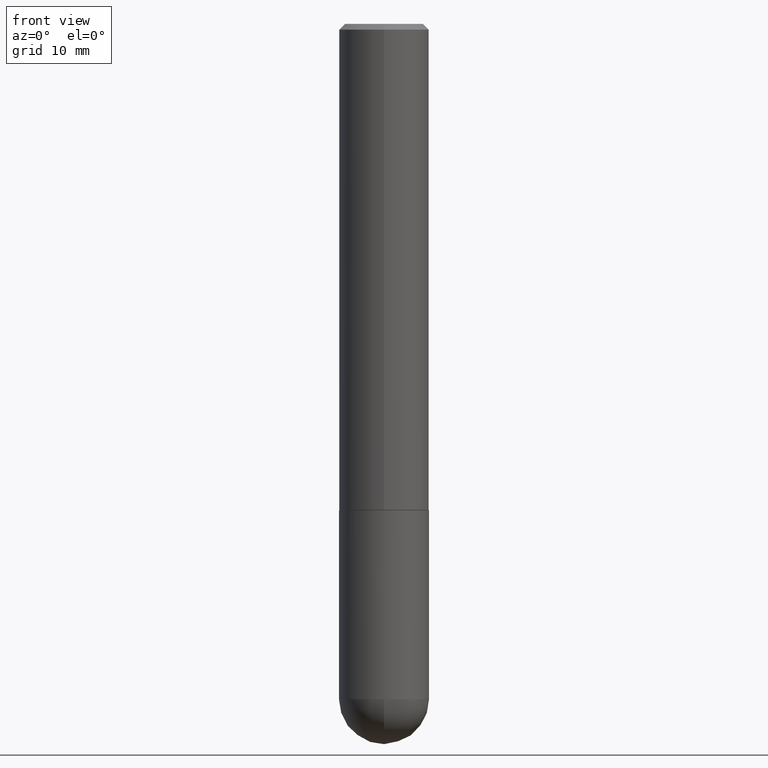
[diagram: clean part render]
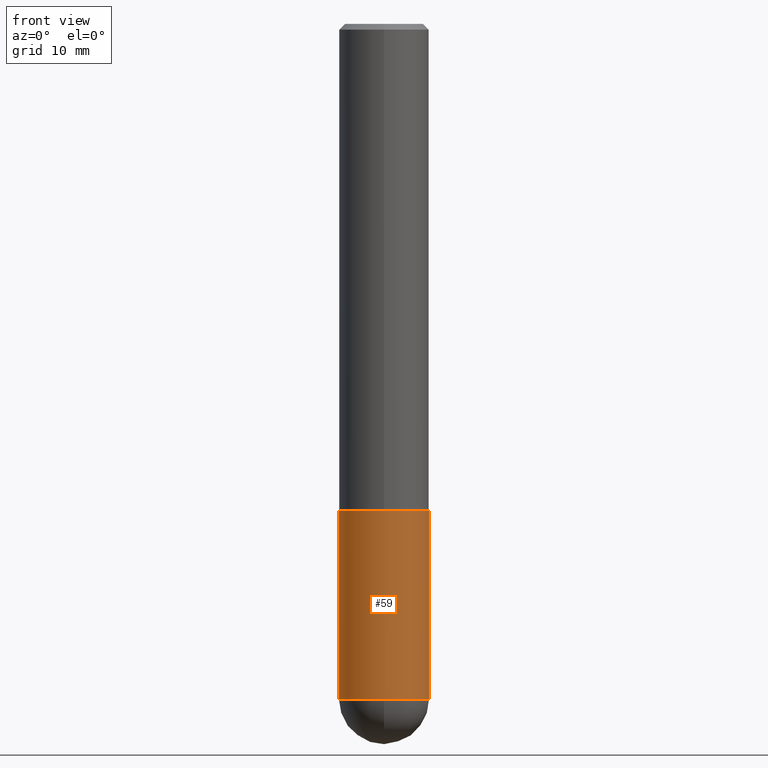
[diagram: same view with one face highlighted and labeled with its STEP entity id]
A machine part, front view. The second image highlights one B-rep face of the part: STEP entity #59.
In plain terms, the highlighted cylindrical surface (partial cylindrical patch) has radius 3.9688 mm, axis along (-0, 0, 1).
Its self-contained STEP definition (entity closure, byte-faithful):
#7 = ORIENTED_EDGE ( 'NONE', *, *, #114, .F. ) ;
#10 = DIRECTION ( 'NONE',  ( -2.445468806185136597E-29, 3.491481338843145583E-15, 1.000000000000000000 ) ) ;
#11 = DIRECTION ( 'NONE',  ( -2.445468806185136597E-29, 3.491481338843145583E-15, 1.000000000000000000 ) ) ;
#12 = DIRECTION ( 'NONE',  ( -2.445468806185136597E-29, 3.491481338843145583E-15, 1.000000000000000000 ) ) ;
#39 = DIRECTION ( 'NONE',  ( 1.000000000000000000, -6.982962677686262766E-15, 0.000000000000000000 ) ) ;
#51 = DIRECTION ( 'NONE',  ( -2.445468806185136597E-29, 3.491481338843145583E-15, 1.000000000000000000 ) ) ;
#59 = ADVANCED_FACE ( 'NONE', ( #180 ), #135, .T. ) ;
#70 = AXIS2_PLACEMENT_3D ( 'NONE', #369, #51, #233 ) ;
#72 = CARTESIAN_POINT ( 'NONE',  ( -0.1562500000000000000, -5.928166919315270321E-15, -2.343750000000000000 ) ) ;
#74 = CARTESIAN_POINT ( 'NONE',  ( -0.1562500000000000000, 1.110223024625156540E-15, -7.685836078523291160E-30 ) ) ;
#92 = VECTOR ( 'NONE', #401, 39.37007874015748143 ) ;
#99 = CIRCLE ( 'NONE', #404, 0.1562500000000000000 ) ;
#114 = EDGE_CURVE ( 'NONE', #281, #270, #396, .T. ) ;
#117 = EDGE_CURVE ( 'NONE', #270, #132, #241, .T. ) ;
#132 = VERTEX_POINT ( 'NONE', #152 ) ;
#135 = CYLINDRICAL_SURFACE ( 'NONE', #70, 0.1562500000000000000 ) ;
#152 = CARTESIAN_POINT ( 'NONE',  ( 0.1562500000000000000, -6.984708418355709513E-15, -1.688000000000000167 ) ) ;
#156 = CARTESIAN_POINT ( 'NONE',  ( -1.110223024625101517E-15, -0.1562500000000085487, -2.343749999999999556 ) ) ;
#174 = ORIENTED_EDGE ( 'NONE', *, *, #250, .T. ) ;
#180 = FACE_OUTER_BOUND ( 'NONE', #286, .T. ) ;
#205 = VECTOR ( 'NONE', #374, 39.37007874015748143 ) ;
#211 = EDGE_CURVE ( 'NONE', #385, #132, #275, .T. ) ;
#223 = VERTEX_POINT ( 'NONE', #156 ) ;
#230 = CARTESIAN_POINT ( 'NONE',  ( -0.1562500000000000000, -5.928166919315269532E-15, -1.688000000000000167 ) ) ;
#233 = DIRECTION ( 'NONE',  ( 1.000000000000000000, -6.982962677686266711E-15, 4.876176775795936353E-29 ) ) ;
#241 = CIRCLE ( 'NONE', #376, 0.1562500000000000000 ) ;
#248 = CARTESIAN_POINT ( 'NONE',  ( 0.1562500000000000000, -8.129477862328905246E-15, -2.343750000000000000 ) ) ;
#250 = EDGE_CURVE ( 'NONE', #223, #385, #99, .T. ) ;
#257 = ORIENTED_EDGE ( 'NONE', *, *, #117, .F. ) ;
#270 = VERTEX_POINT ( 'NONE', #230 ) ;
#272 = DIRECTION ( 'NONE',  ( 1.000000000000000000, -6.982962677686269077E-15, 0.000000000000000000 ) ) ;
#275 = LINE ( 'NONE', #406, #205 ) ;
#281 = VERTEX_POINT ( 'NONE', #72 ) ;
#283 = ORIENTED_EDGE ( 'NONE', *, *, #211, .T. ) ;
#286 = EDGE_LOOP ( 'NONE', ( #7, #296, #174, #283, #257 ) ) ;
#296 = ORIENTED_EDGE ( 'NONE', *, *, #337, .T. ) ;
#298 = CARTESIAN_POINT ( 'NONE',  ( 5.731567514496413899E-29, -8.183159387913622595E-15, -2.343750000000000000 ) ) ;
#329 = CARTESIAN_POINT ( 'NONE',  ( 5.731567514496413899E-29, -8.183159387913622595E-15, -2.343750000000000000 ) ) ;
#337 = EDGE_CURVE ( 'NONE', #281, #223, #372, .T. ) ;
#338 = CARTESIAN_POINT ( 'NONE',  ( 4.127951344840510809E-29, -5.893620499967230340E-15, -1.688000000000000167 ) ) ;
#369 = CARTESIAN_POINT ( 'NONE',  ( 0.000000000000000000, 0.000000000000000000, 0.000000000000000000 ) ) ;
#372 = CIRCLE ( 'NONE', #384, 0.1562500000000000000 ) ;
#374 = DIRECTION ( 'NONE',  ( -2.445468806185136877E-29, 3.491481338843145188E-15, 1.000000000000000000 ) ) ;
#376 = AXIS2_PLACEMENT_3D ( 'NONE', #338, #10, #272 ) ;
#384 = AXIS2_PLACEMENT_3D ( 'NONE', #298, #12, #39 ) ;
#385 = VERTEX_POINT ( 'NONE', #248 ) ;
#390 = DIRECTION ( 'NONE',  ( 1.000000000000000000, -6.982962677686262766E-15, 0.000000000000000000 ) ) ;
#396 = LINE ( 'NONE', #74, #92 ) ;
#401 = DIRECTION ( 'NONE',  ( -2.445468806185136877E-29, 3.491481338843145188E-15, 1.000000000000000000 ) ) ;
#404 = AXIS2_PLACEMENT_3D ( 'NONE', #329, #11, #390 ) ;
#406 = CARTESIAN_POINT ( 'NONE',  ( 0.1562500000000000000, -1.091087918388479174E-15, 7.619026212181150377E-30 ) ) ;